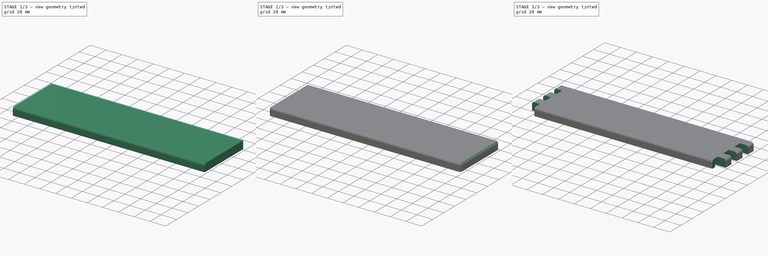
[diagram: build sequence overview — one tinted view per stage of 3, left to right]
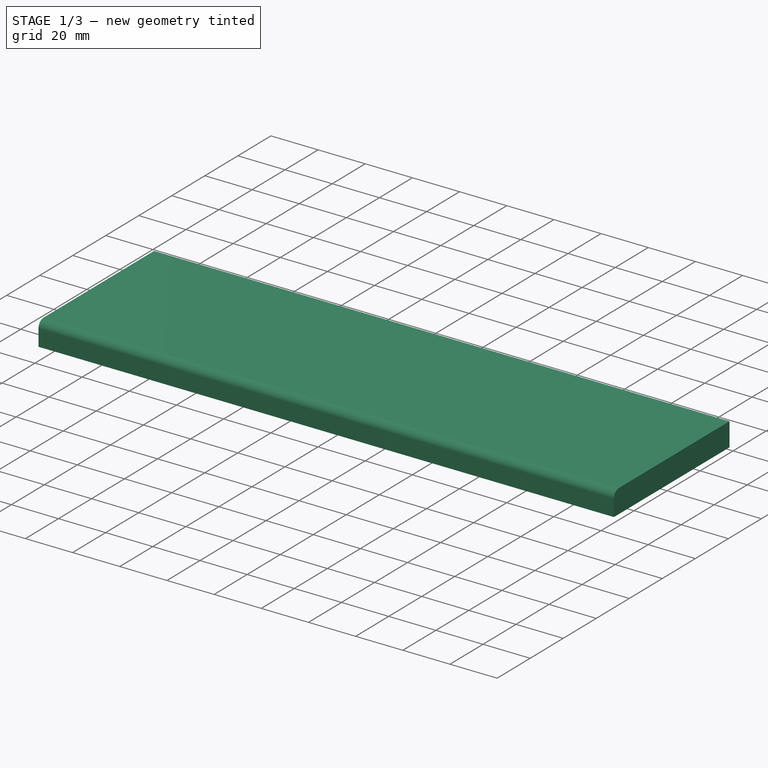
[diagram: stage 1 of 3 — iso view after this stage's code; geometry added in this stage tinted green]
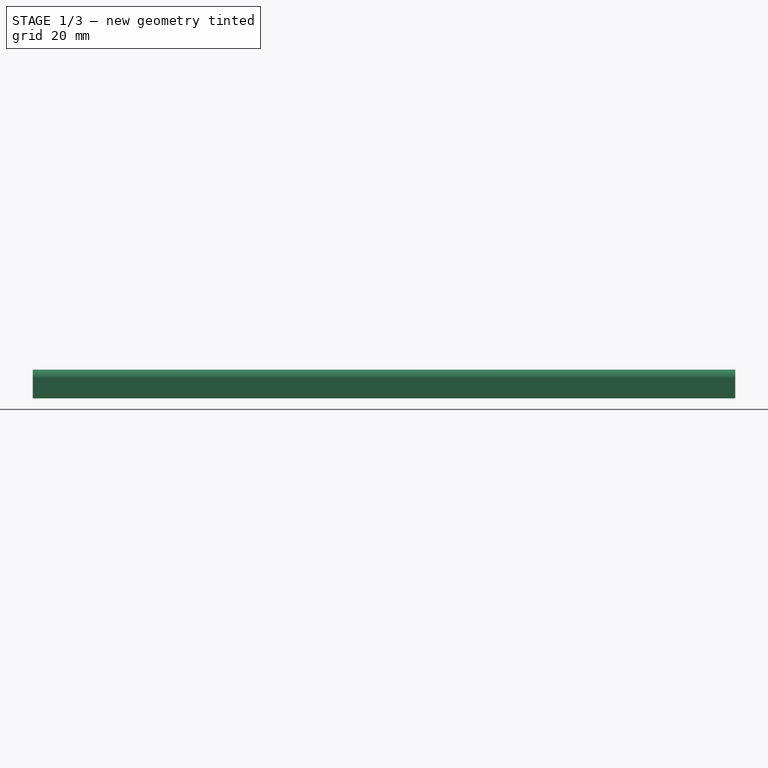
[diagram: stage 1 of 3 — front view after this stage's code; geometry added in this stage tinted green]
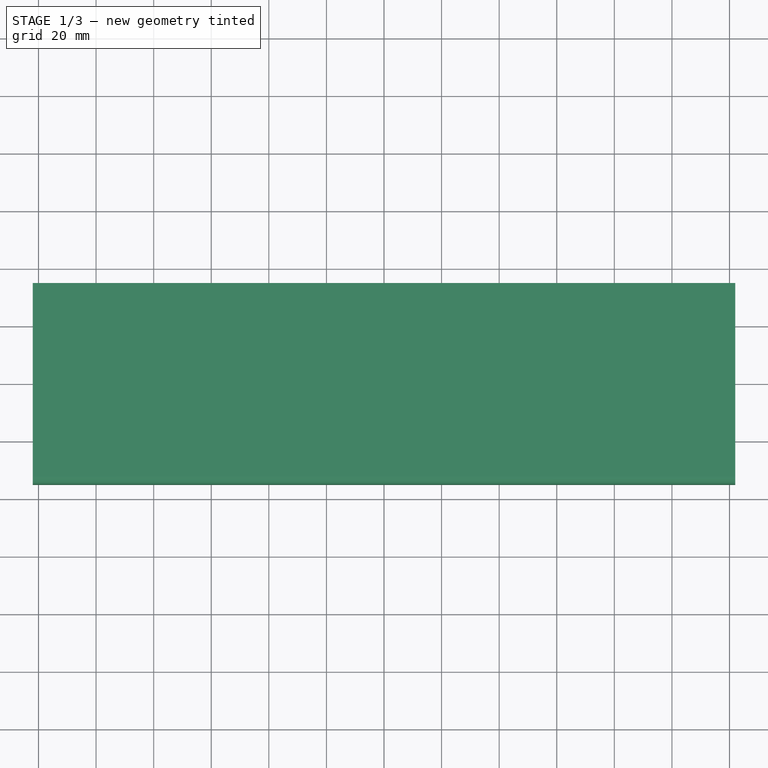
[diagram: stage 1 of 3 — top view after this stage's code; geometry added in this stage tinted green]
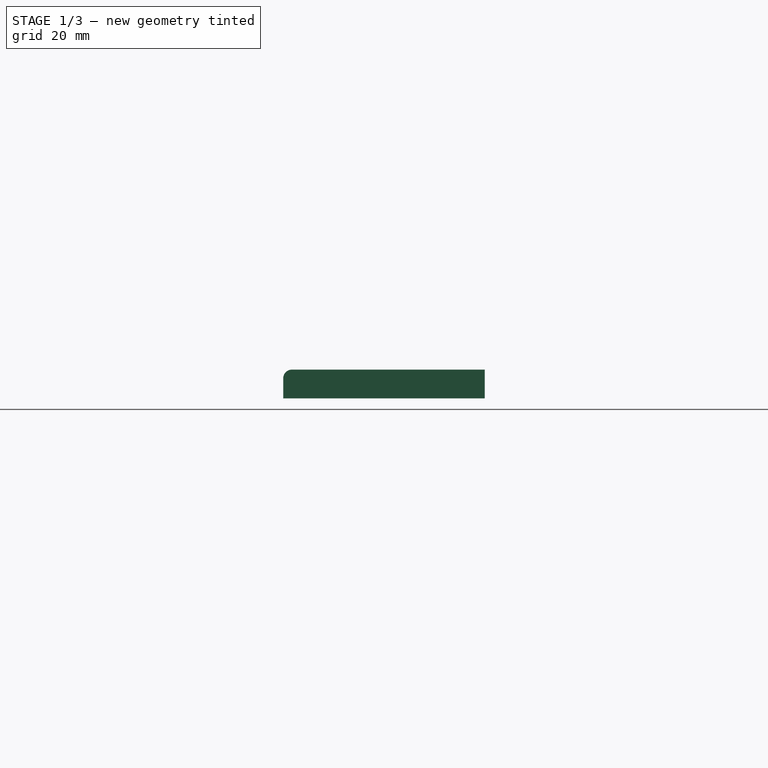
[diagram: stage 1 of 3 — right view after this stage's code; geometry added in this stage tinted green]
FCSTD DOCUMENT  (FreeCAD 0.18R16093 (Git))
Label: bottom
License: All rights reserved
LicenseURL: http://en.wikipedia.org/wiki/All_rights_reserved
objects: PartDesign::Fillet×4, Sketcher::SketchObject×3, PartDesign::Pocket×2, PartDesign::Pad×1, PartDesign::Body×1
note: 14 computed .brp shape members not serialized (recipe doc carries the construction recipe); baked Part::Feature solids carry a one-line shape summary decoded from their .brp

FEATURE [Sketcher::SketchObject] Sketch
  MapMode = 5
  Support = -> [XY_Plane]
  sketch-geometry (4):
    g0: LineSegment StartX=-122 StartY=35 StartZ=0 EndX=122 EndY=35 EndZ=0
    g1: LineSegment StartX=122 StartY=35 StartZ=0 EndX=122 EndY=-35 EndZ=0
    g2: LineSegment StartX=122 StartY=-35 StartZ=0 EndX=-122 EndY=-35 EndZ=0
    g3: LineSegment StartX=-122 StartY=-35 StartZ=0 EndX=-122 EndY=35 EndZ=0
  constraints (10):
    c: Coincident(g0,g1)
    c: Coincident(g1,g2)
    c: Coincident(g2,g3)
    c: Coincident(g3,g0)
    c: DistanceX(g2,g1) = 244
    c: DistanceY(g1,g0) = 70
    c: Symmetric(g0,g0,g-2)
    c: Symmetric(g0,g2,g-1)
    c: Parallel(g0,g2)
    c: Parallel(g3,g1)
FEATURE [PartDesign::Pad] Pad
  Length = 10
  Length2 = 100
  Profile = -> Sketch
  Type = 0
FEATURE [PartDesign::Fillet] Fillet
  Base = -> Pad [Edge10]
  BaseFeature = -> Pad
  Radius = 3
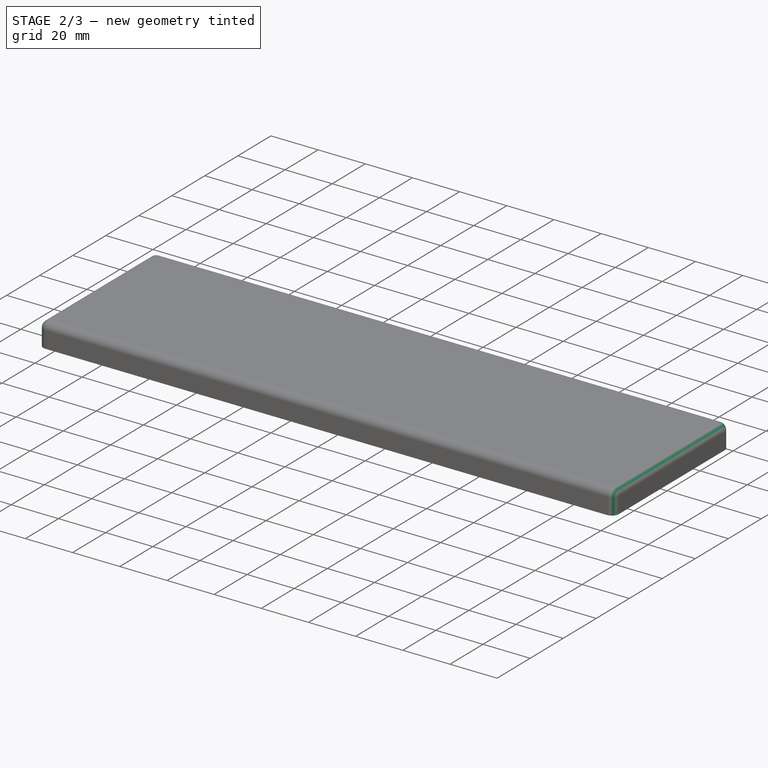
[diagram: stage 2 of 3 — iso view after this stage's code; geometry added in this stage tinted green]
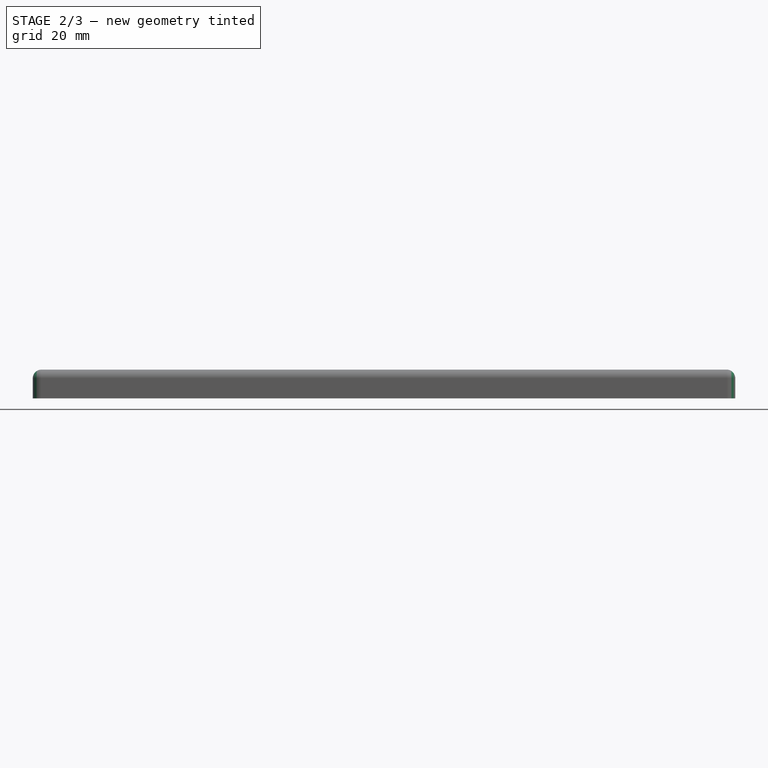
[diagram: stage 2 of 3 — front view after this stage's code; geometry added in this stage tinted green]
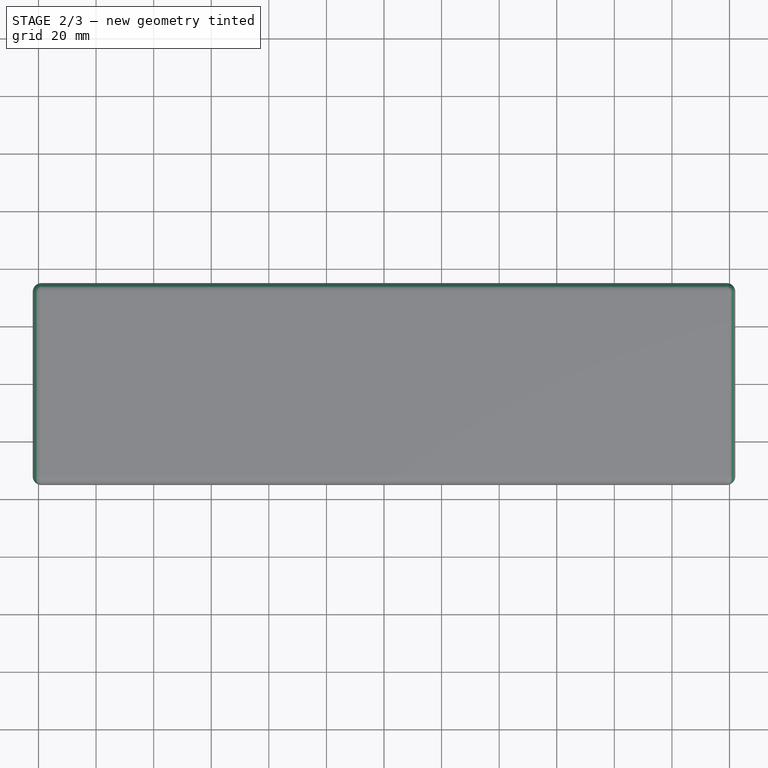
[diagram: stage 2 of 3 — top view after this stage's code; geometry added in this stage tinted green]
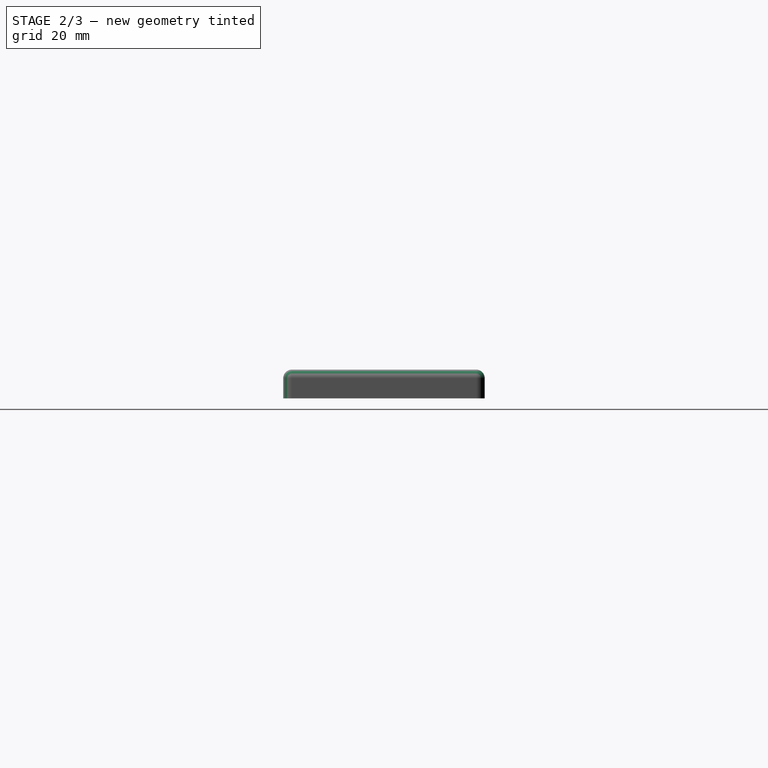
[diagram: stage 2 of 3 — right view after this stage's code; geometry added in this stage tinted green]
FEATURE [PartDesign::Fillet] Fillet001
  Base = -> Fillet [Edge14]
  BaseFeature = -> Fillet
  Radius = 3
FEATURE [PartDesign::Fillet] Fillet002
  Base = -> Fillet001 [Edge19]
  BaseFeature = -> Fillet001
  Radius = 3
FEATURE [PartDesign::Fillet] Fillet003
  Base = -> Fillet002 [Edge1]
  BaseFeature = -> Fillet002
  Radius = 3
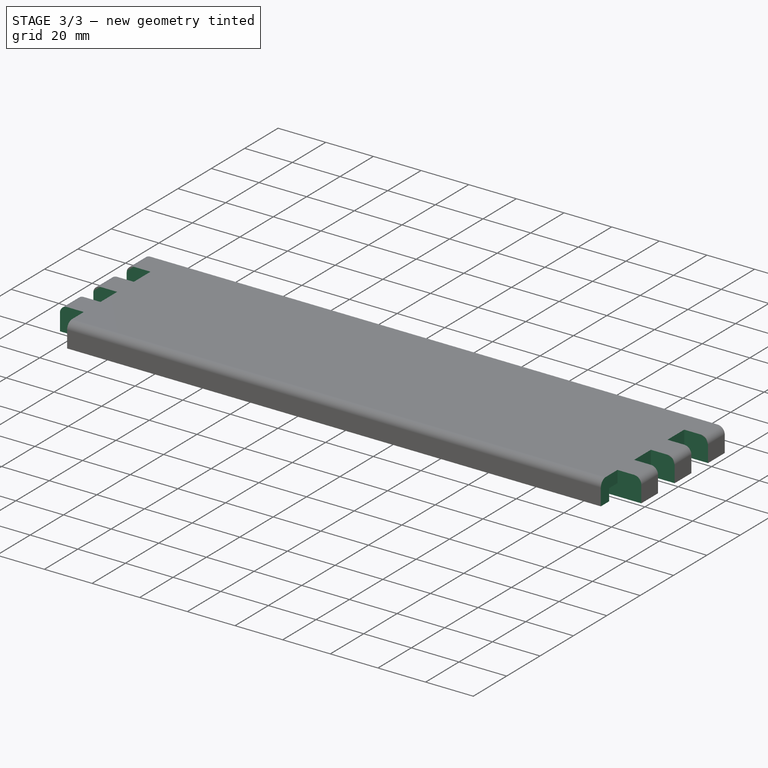
[diagram: stage 3 of 3 — iso view after this stage's code; geometry added in this stage tinted green]
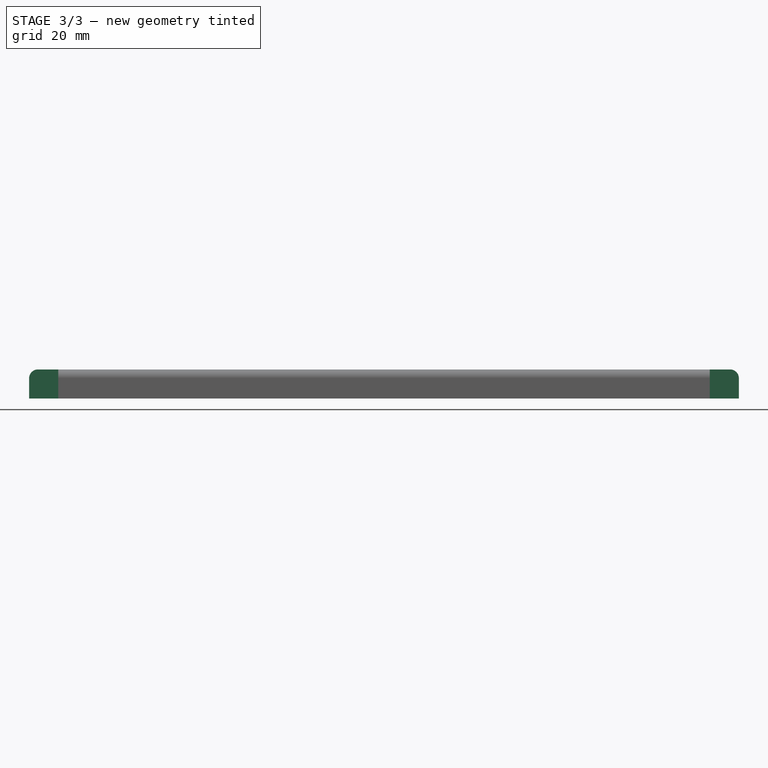
[diagram: stage 3 of 3 — front view after this stage's code; geometry added in this stage tinted green]
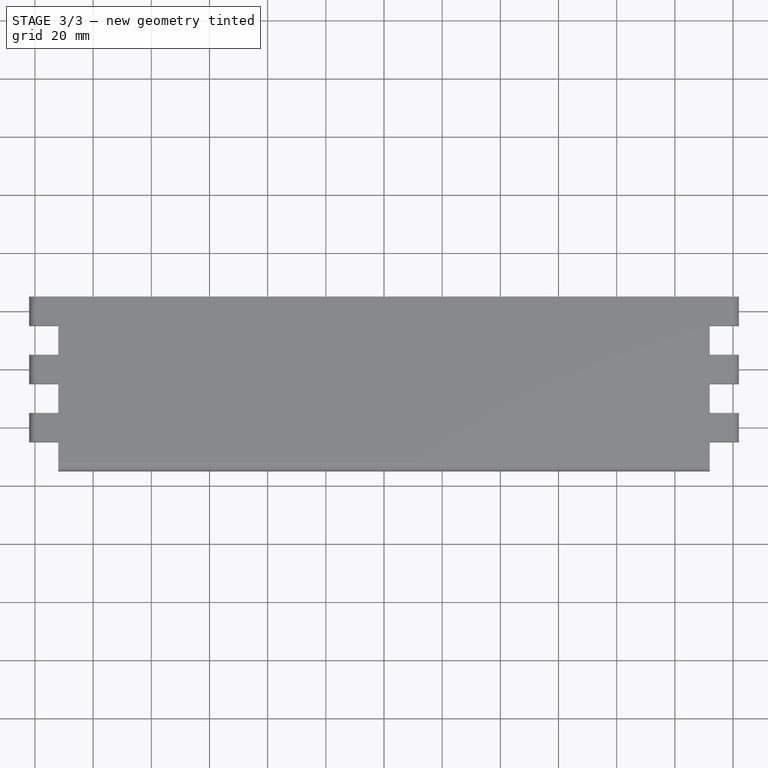
[diagram: stage 3 of 3 — top view after this stage's code; geometry added in this stage tinted green]
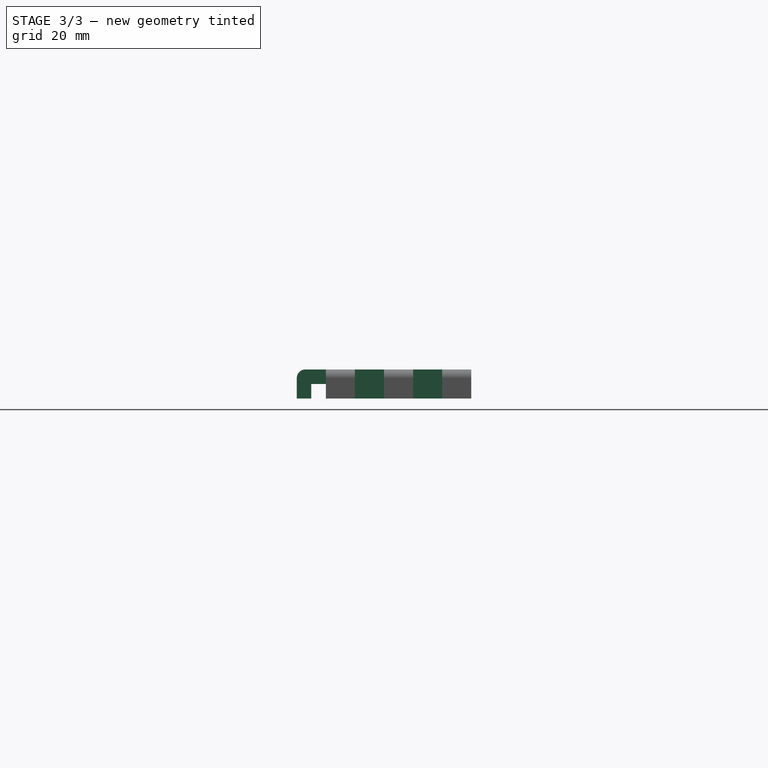
[diagram: stage 3 of 3 — right view after this stage's code; geometry added in this stage tinted green]
FEATURE [Sketcher::SketchObject] Sketch001
  MapMode = 5
  Placement = pos=(0,0,0) rot=(1,0,0;3.14159rad)
  Support = -> [Fillet003]
  sketch-geometry (4):
    g0: ArcOfCircle CenterX=-117 CenterY=27.5 CenterZ=0 NormalX=0 NormalY=0 NormalZ=1 AngleXU=0 Radius=2.5 StartAngle=1.5708 EndAngle=4.71239
    g1: ArcOfCircle CenterX=117 CenterY=27.5 CenterZ=0 NormalX=0 NormalY=0 NormalZ=1 AngleXU=0 Radius=2.5 StartAngle=4.71239 EndAngle=7.85398
    g2: LineSegment StartX=-117 StartY=25 StartZ=0 EndX=117 EndY=25 EndZ=0
    g3: LineSegment StartX=-117 StartY=30 StartZ=0 EndX=117 EndY=30 EndZ=0
  constraints (9):
    c: Tangent(g0,g3) = 1.5708
    c: Tangent(g0,g2) = -1.5708
    c: Tangent(g2,g1) = -1.5708
    c: Tangent(g3,g1) = 1.5708
    c: Equal(g0,g1)
    c: Radius(g1) = 2.5
    c: Symmetric(g0,g1,g-2)
    c: DistanceX(g0,g1) = 234
    c: DistanceY(g-1,g0) = 25
FEATURE [PartDesign::Pocket] Pocket
  BaseFeature = -> Fillet003
  Length = 5
  Length2 = 100
  Profile = -> Sketch001
  Type = 0
FEATURE [Sketcher::SketchObject] Sketch002
  MapMode = 5
  Placement = pos=(0,0,0) rot=(1,0,0;3.14159rad)
  Support = -> [Pocket]
  sketch-geometry (28):
    g0: LineSegment StartX=-122 StartY=15 StartZ=0 EndX=-112 EndY=15 EndZ=0
    g1: LineSegment StartX=-112 StartY=15 StartZ=0 EndX=-112 EndY=5 EndZ=0
    g2: LineSegment StartX=-112 StartY=5 StartZ=0 EndX=-122 EndY=5 EndZ=0
    g3: LineSegment StartX=-122 StartY=5 StartZ=0 EndX=-122 EndY=15 EndZ=0
    g4: LineSegment StartX=-122 StartY=35 StartZ=0 EndX=-112 EndY=35 EndZ=0
    g5: LineSegment StartX=-112 StartY=35 StartZ=0 EndX=-112 EndY=25 EndZ=0
    g6: LineSegment StartX=-112 StartY=25 StartZ=0 EndX=-122 EndY=25 EndZ=0
    g7: LineSegment StartX=-122 StartY=25 StartZ=0 EndX=-122 EndY=35 EndZ=0
    g8: LineSegment StartX=-122 StartY=-5 StartZ=0 EndX=-112 EndY=-5 EndZ=0
    g9: LineSegment StartX=-112 StartY=-5 StartZ=0 EndX=-112 EndY=-15 EndZ=0
    g10: LineSegment StartX=-112 StartY=-15 StartZ=0 EndX=-122 EndY=-15 EndZ=0
    g11: LineSegment StartX=-122 StartY=-15 StartZ=0 EndX=-122 EndY=-5 EndZ=0
    g12: LineSegment StartX=122 StartY=15 StartZ=0 EndX=112 EndY=15 EndZ=0
    g13: LineSegment StartX=112 StartY=15 StartZ=0 EndX=112 EndY=5 EndZ=0
    g14: LineSegment StartX=112 StartY=5 StartZ=0 EndX=122 EndY=5 EndZ=0
    g15: LineSegment StartX=122 StartY=5 StartZ=0 EndX=122 EndY=15 EndZ=0
    g16: LineSegment StartX=122 StartY=35 StartZ=0 EndX=112 EndY=35 EndZ=0
    g17: LineSegment StartX=112 StartY=35 StartZ=0 EndX=112 EndY=25 EndZ=0
    g18: LineSegment StartX=112 StartY=25 StartZ=0 EndX=122 EndY=25 EndZ=0
    g19: LineSegment StartX=122 StartY=25 StartZ=0 EndX=122 EndY=35 EndZ=0
    g20: LineSegment StartX=122 StartY=-5 StartZ=0 EndX=112 EndY=-5 EndZ=0
    g21: LineSegment StartX=112 StartY=-5 StartZ=0 EndX=112 EndY=-15 EndZ=0
    g22: LineSegment StartX=112 StartY=-15 StartZ=0 EndX=122 EndY=-15 EndZ=0
    g23: LineSegment StartX=122 StartY=-15 StartZ=0 EndX=122 EndY=-5 EndZ=0
    g24: LineSegment StartX=-122 StartY=-25 StartZ=0 EndX=122 EndY=-25 EndZ=0
    g25: LineSegment StartX=122 StartY=-25 StartZ=0 EndX=122 EndY=-35 EndZ=0
    g26: LineSegment StartX=122 StartY=-35 StartZ=0 EndX=-122 EndY=-35 EndZ=0
    g27: LineSegment StartX=-122 StartY=-35 StartZ=0 EndX=-122 EndY=-25 EndZ=0
  constraints (84):
    c: Coincident(g0,g1)
    c: Coincident(g1,g2)
    c: Coincident(g2,g3)
    c: Coincident(g3,g0)
    c: Horizontal(g0)
    c: Horizontal(g2)
    c: Vertical(g1)
    c: Vertical(g3)
    c: DistanceX(g2,g1) = 10
    c: DistanceY(g2,g0) = 10
    c: DistanceX(g1,g-1) = 112
    c: Coincident(g4,g5)
    c: Coincident(g5,g6)
    c: Coincident(g6,g7)
    c: Coincident(g7,g4)
    c: Horizontal(g4)
    c: Horizontal(g6)
    c: Vertical(g5)
    c: Vertical(g7)
    c: Vertical(g5,g0)
    c: Vertical(g6,g0)
    c: DistanceY(g0,g6) = 10
    c: DistanceY(g6,g4) = 10
    c: Coincident(g8,g9)
    c: Coincident(g9,g10)
    c: Coincident(g10,g11)
    c: Coincident(g11,g8)
    c: Horizontal(g8)
    c: Horizontal(g10)
    c: Vertical(g9)
    c: Vertical(g11)
    c: Vertical(g8,g1)
    c: Vertical(g8,g2)
    c: DistanceY(g8,g2) = 10
    c: DistanceY(g10,g8) = 10
    c: Coincident(g12,g13)
    c: Coincident(g13,g14)
    c: Coincident(g14,g15)
    c: Coincident(g15,g12)
    c: Horizontal(g12)
    c: Horizontal(g14)
    c: Vertical(g13)
    c: Vertical(g15)
    c: Coincident(g16,g17)
    c: Coincident(g17,g18)
    c: Coincident(g18,g19)
    c: Coincident(g19,g16)
    c: Horizontal(g16)
    c: Horizontal(g18)
    c: Vertical(g17)
    c: Vertical(g19)
    c: Coincident(g20,g21)
    c: Coincident(g21,g22)
    c: Coincident(g22,g23)
    c: Coincident(g23,g20)
    c: Horizontal(g20)
    c: Horizontal(g22)
    c: Vertical(g21)
    c: Vertical(g23)
    c: DistanceX(g-1,g12) = 112
    c: DistanceX(g12,g12) = 10
    c: Vertical(g12,g17)
    c: Vertical(g13,g20)
    c: Vertical(g20,g14)
    c: Vertical(g12,g18)
    c: DistanceY(g18,g16) = 10
    c: DistanceY(g12,g18) = 10
    c: DistanceY(g14,g12) = 10
    c: DistanceY(g20,g14) = 10
    c: DistanceY(g22,g20) = 10
    c: DistanceY(g-1,g6) = 25
    c: Horizontal(g16,g4)
    c: Coincident(g24,g25)
    c: Coincident(g25,g26)
    c: Coincident(g26,g27)
    c: Coincident(g27,g24)
    c: Horizontal(g24)
    c: Horizontal(g26)
    c: Vertical(g25)
    c: Vertical(g27)
    c: DistanceY(g24,g10) = 10
    c: Vertical(g24,g10)
    c: Vertical(g24,g22)
    c: DistanceY(g26,g24) = 10
FEATURE [PartDesign::Pocket] Pocket001
  BaseFeature = -> Pocket
  Length = 5
  Length2 = 100
  Profile = -> Sketch002
  Type = 1
FEATURE [PartDesign::Body] Body  label="bottomPlate"
  Group = -> [Sketch,Pad,Fillet,Fillet001,Fillet002,Fillet003,Sketch001,Pocket,Sketch002,Pocket001]
  Origin = -> Origin
  Tip = -> Pocket001
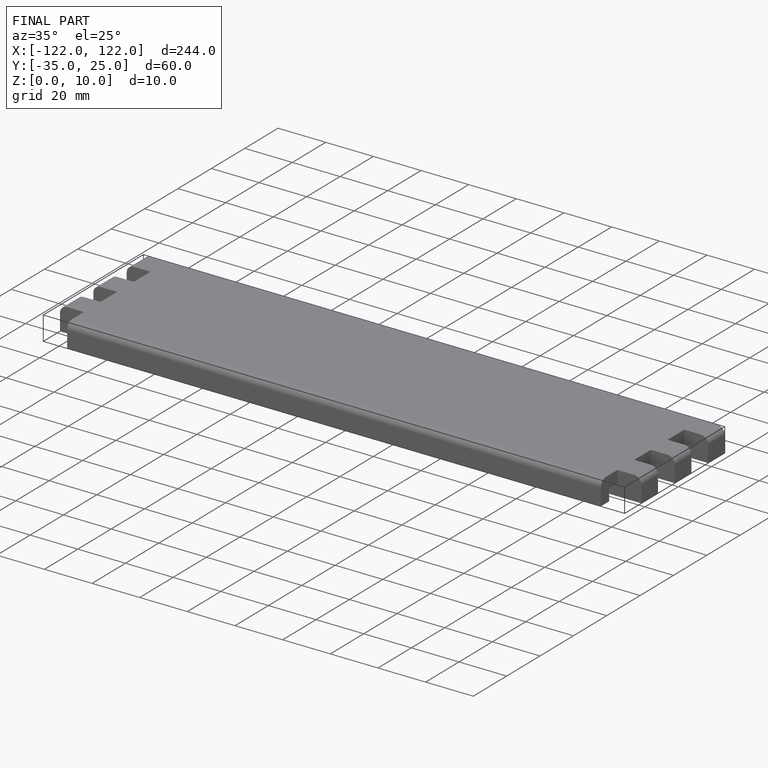
[diagram: finished part — iso view with bounding-box wireframe]
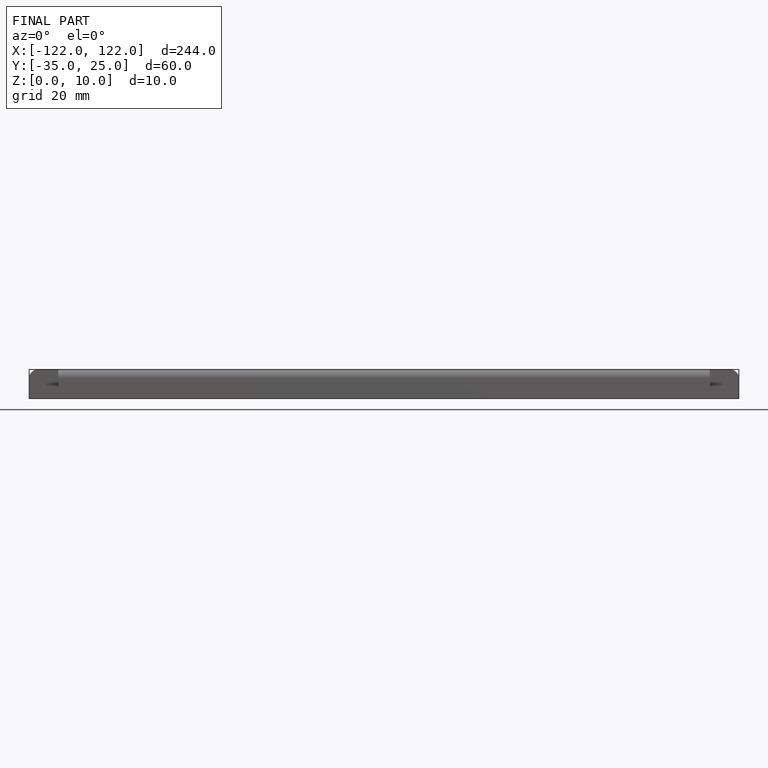
[diagram: finished part — front view with bounding-box wireframe]
